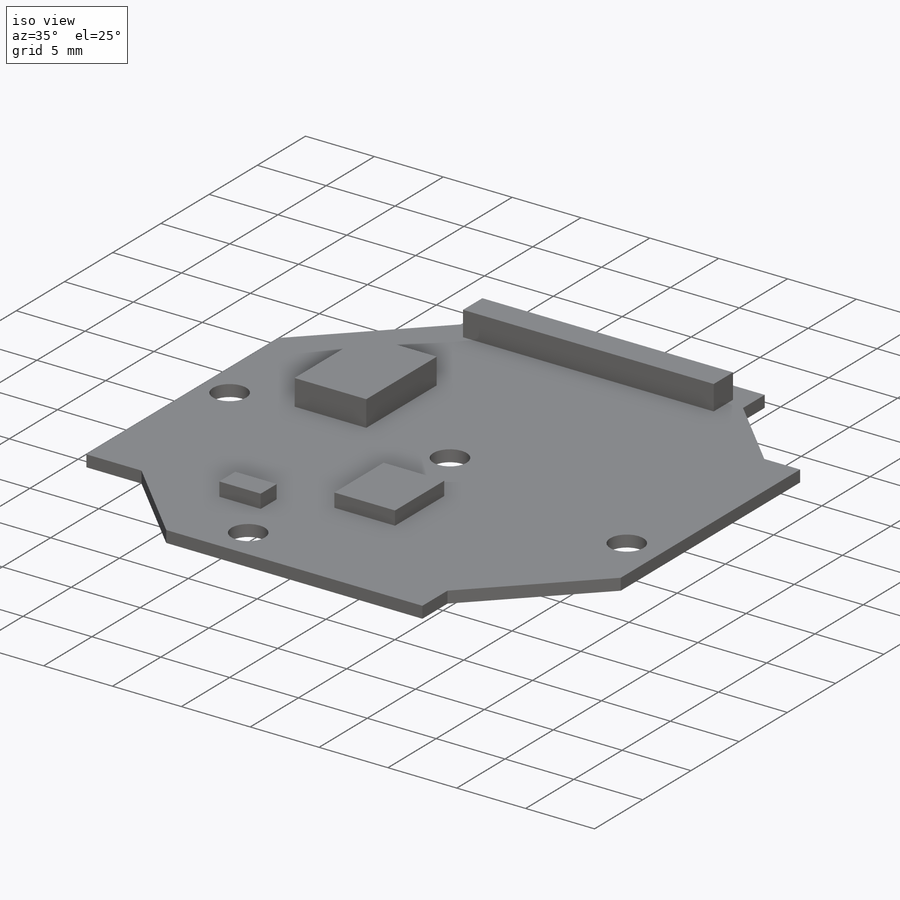
[diagram: iso view]
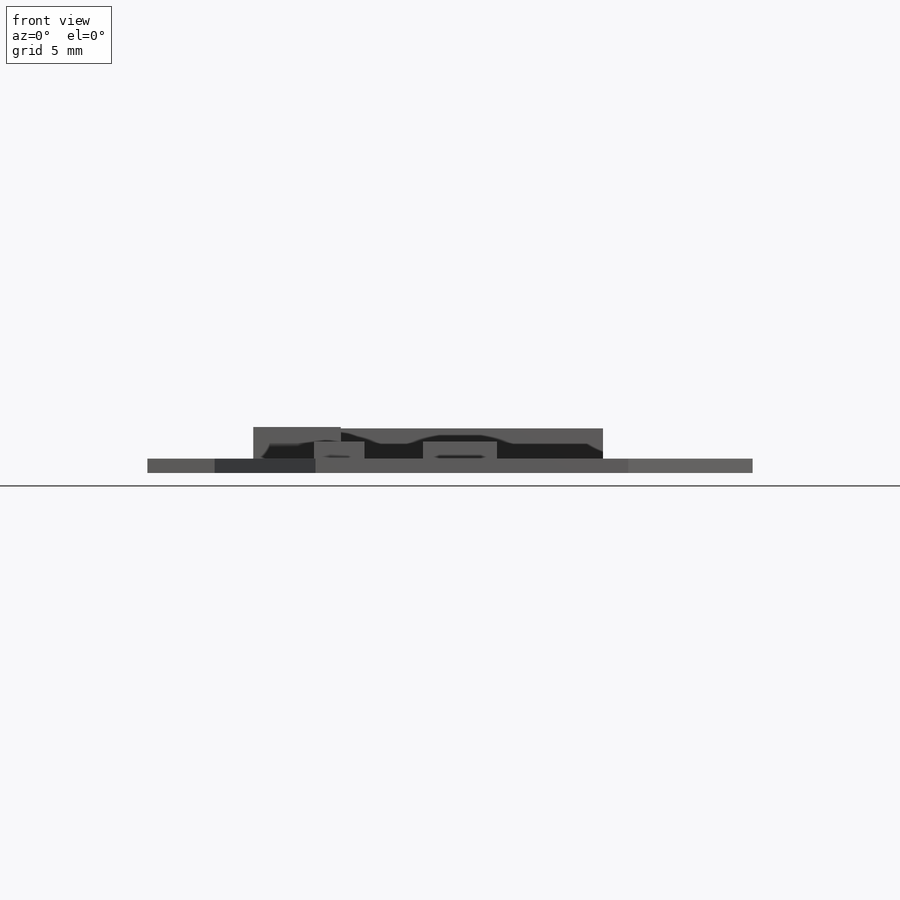
[diagram: front view]
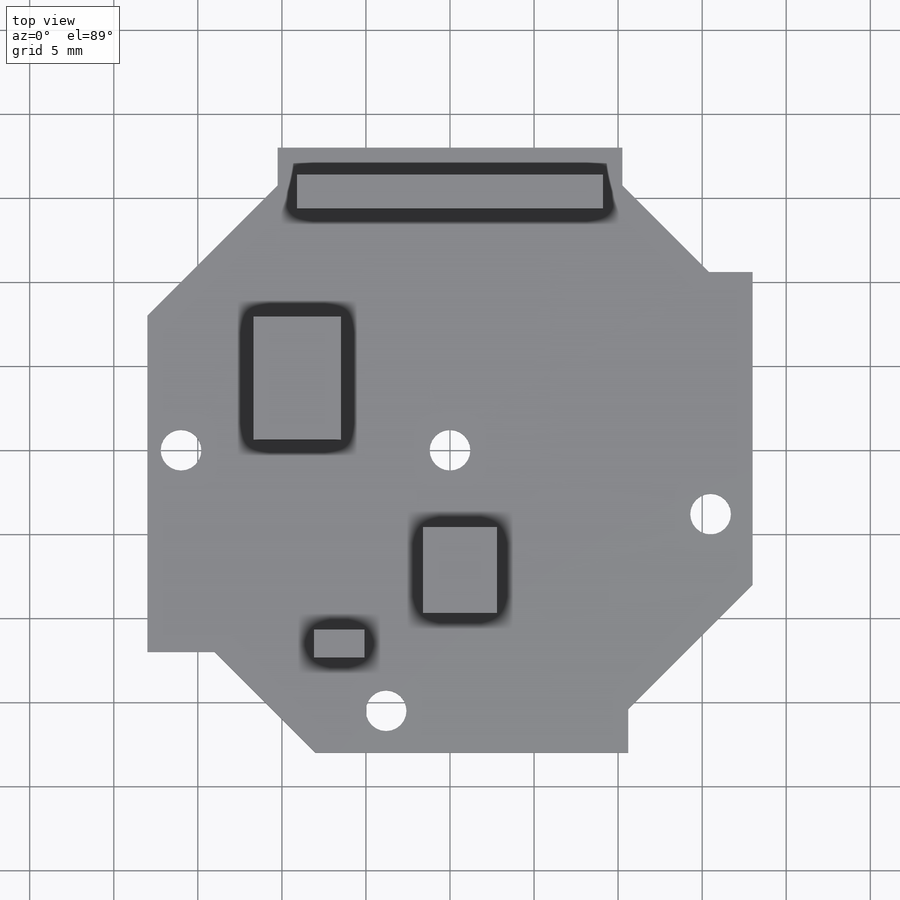
[diagram: top view]
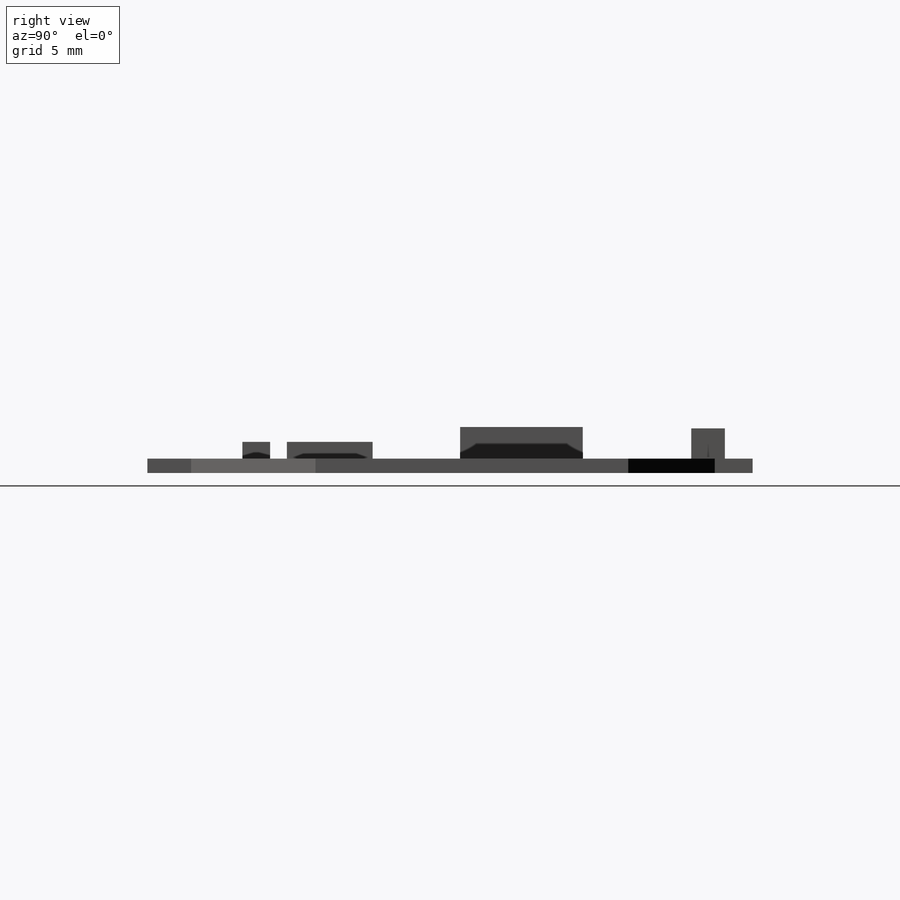
[diagram: right view]
SOLIDWORKS PART (.sldprt)
format: sldprt  version: not decoded by parser v0  size: 235,008 bytes
history: native  units: mm
features: sketch x5, extrude x4, material x1, cut_extrude x1 (+16 scaffold rows collapsed)
feature tree (27):
  scaffold x16  (default folders/planes/origin — collapsed)
  material  "Material <not specified>"
  sketch  "Sketch1"  dims[c1.D1=18.0mm c1.D2=2.25mm c1.D3=2.6mm c1.D4=10.25mm c1.D5=~9.057711mm c2.D5=45.0deg c2.D6=4.0mm c2.D7=2.6mm c2.D8=12.0mm c2.D9=10.6mm]
  extrude  "Boss-Extrude1"  Depth=0.85mm
  sketch  "Sketch2"  dims[D1=2.0mm D2=18.2mm D3=15.35mm]
  extrude  "Boss-Extrude2"  Depth=1.8mm
  sketch  "Sketch3"  dims[D1=7.3mm D2=5.2mm D3=6.5mm D4=0.6mm]
  extrude  "Boss-Extrude3"  Depth=1.88mm
  sketch  "Sketch4"  dims[D1=5.1mm D2=4.4mm D3=4.6mm D4=0.6mm D5=3.0mm D6=1.65mm D7=3.5mm D8=1.0mm]
  extrude  "Boss-Extrude4"  Depth=1mm
  sketch  "Sketch5"  dims[c1.D1=2.42mm c1.D5=2.42mm c1.D2=16.0mm c1.D3=15.5mm c1.D4=3.8mm c2.D5=15.5mm c2.D6=3.8mm]
  cut_extrude  "Cut-Extrude1"  [1 undecoded]
decode coverage: 9 of 10 modeling features carry decoded parameters
note: ~ marks probable driven/reference dimensions
note: 1 parameter value undecoded
note: suppression state not decoded; provenance and decode notes live in map.json
